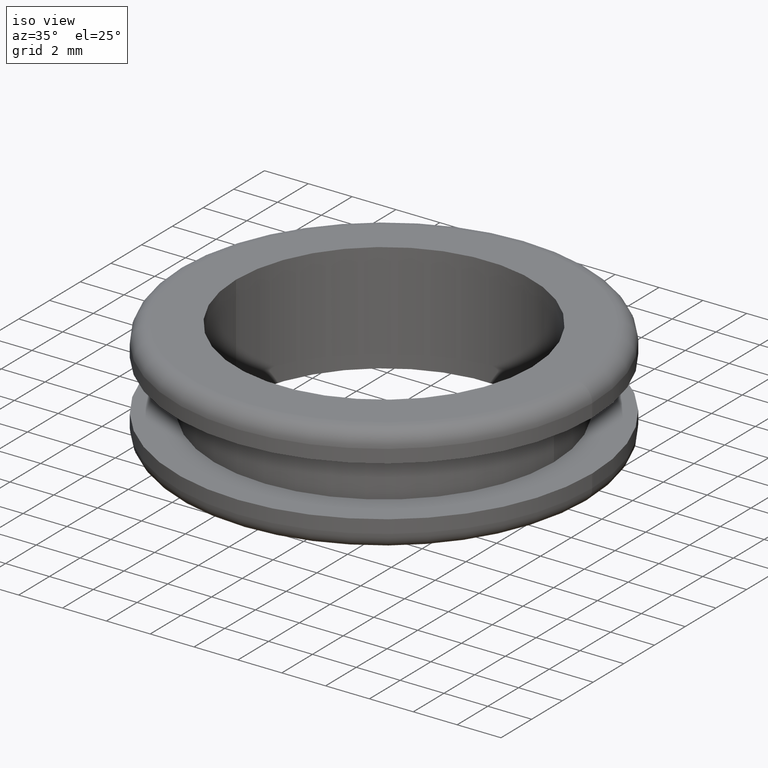
[diagram: clean part render]
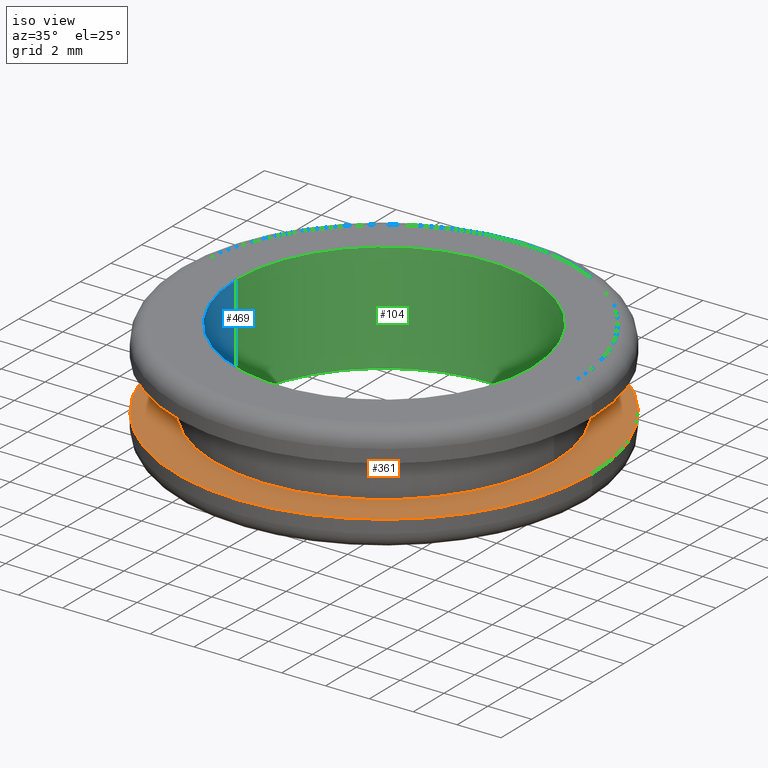
[diagram: same view with three faces highlighted in distinct colors, each labeled with its STEP entity id]
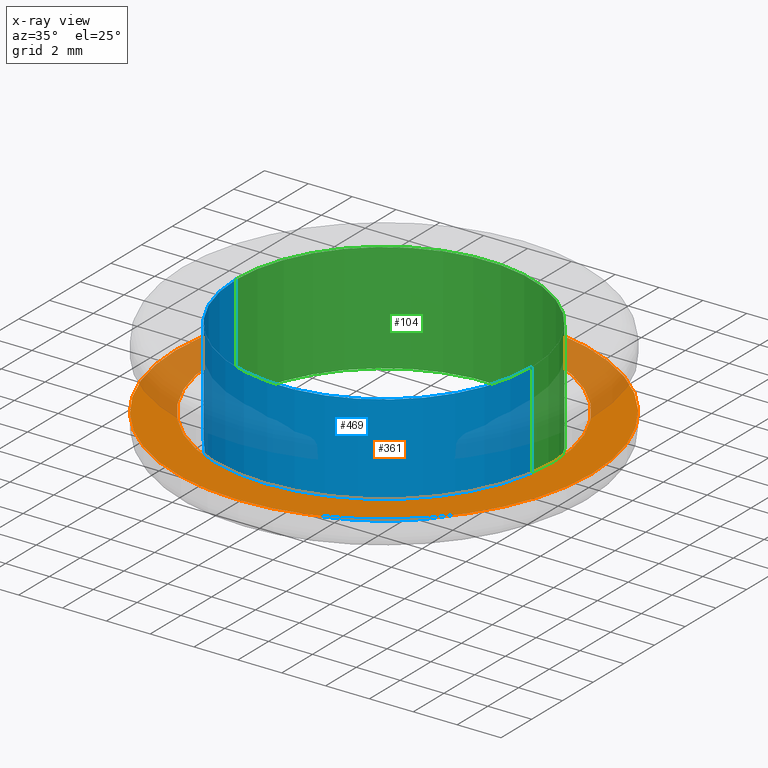
[diagram: x-ray of the same camera — body ghosted, the three highlighted faces saturated]
A machine part, iso view with three faces highlighted in distinct colors.
The next image is the same camera in x-ray (body ghosted, the three faces saturated) — at least one of them is partly hidden behind the body in this view.
Their STEP definitions:

[orange] entity #361 — the highlighted planar face has unit normal (0, 0, -1).
#8 = CARTESIAN_POINT ( 'NONE',  ( 113.8108550663362000, 0.0000000000000000000, 139.0502122310740000 ) ) ;
#31 = VERTEX_POINT ( 'NONE', #323 ) ;
#47 = CARTESIAN_POINT ( 'NONE',  ( 115.5608550661927900, 1.163414459174849600E-015, 139.0502122310740000 ) ) ;
#51 = EDGE_CURVE ( 'NONE', #391, #404, #407, .T. ) ;
#58 = EDGE_LOOP ( 'NONE', ( #357, #218 ) ) ;
#67 = DIRECTION ( 'NONE',  ( 0.0000000000000000000, 0.0000000000000000000, -1.000000000000000000 ) ) ;
#75 = AXIS2_PLACEMENT_3D ( 'NONE', #221, #472, #289 ) ;
#124 = ORIENTED_EDGE ( 'NONE', *, *, #51, .F. ) ;
#128 = AXIS2_PLACEMENT_3D ( 'NONE', #418, #196, #452 ) ;
#146 = DIRECTION ( 'NONE',  ( -1.000000000000000000, 0.0000000000000000000, 0.0000000000000000000 ) ) ;
#156 = FACE_BOUND ( 'NONE', #58, .T. ) ;
#169 = VERTEX_POINT ( 'NONE', #217 ) ;
#196 = DIRECTION ( 'NONE',  ( 0.0000000000000000000, 0.0000000000000000000, -1.000000000000000000 ) ) ;
#200 = DIRECTION ( 'NONE',  ( -1.000000000000000000, 0.0000000000000000000, 0.0000000000000000000 ) ) ;
#206 = EDGE_CURVE ( 'NONE', #31, #169, #431, .T. ) ;
#217 = CARTESIAN_POINT ( 'NONE',  ( 98.31085506629669600, 0.0000000000000000000, 139.0502122310740000 ) ) ;
#218 = ORIENTED_EDGE ( 'NONE', *, *, #206, .T. ) ;
#221 = CARTESIAN_POINT ( 'NONE',  ( 106.0608550663163900, 0.0000000000000000000, 139.0502122310740000 ) ) ;
#234 = EDGE_CURVE ( 'NONE', #169, #31, #461, .T. ) ;
#269 = CARTESIAN_POINT ( 'NONE',  ( 96.56085506643999800, 0.0000000000000000000, 139.0502122310740000 ) ) ;
#276 = EDGE_CURVE ( 'NONE', #404, #391, #305, .T. ) ;
#289 = DIRECTION ( 'NONE',  ( -1.000000000000000000, 0.0000000000000000000, 0.0000000000000000000 ) ) ;
#301 = AXIS2_PLACEMENT_3D ( 'NONE', #328, #364, #146 ) ;
#304 = PLANE ( 'NONE',  #311 ) ;
#305 = CIRCLE ( 'NONE', #128, 9.499999999876399300 ) ;
#311 = AXIS2_PLACEMENT_3D ( 'NONE', #8, #423, #200 ) ;
#323 = CARTESIAN_POINT ( 'NONE',  ( 113.8108550663360900, 9.491012693416115100E-016, 139.0502122310740000 ) ) ;
#328 = CARTESIAN_POINT ( 'NONE',  ( 106.0608550663163900, 0.0000000000000000000, 139.0502122310740000 ) ) ;
#331 = CARTESIAN_POINT ( 'NONE',  ( 106.0608550663163900, 0.0000000000000000000, 139.0502122310740000 ) ) ;
#357 = ORIENTED_EDGE ( 'NONE', *, *, #234, .T. ) ;
#361 = ADVANCED_FACE ( 'NONE', ( #422, #156 ), #304, .F. ) ;
#364 = DIRECTION ( 'NONE',  ( 0.0000000000000000000, 0.0000000000000000000, -1.000000000000000000 ) ) ;
#369 = EDGE_LOOP ( 'NONE', ( #124, #406 ) ) ;
#370 = DIRECTION ( 'NONE',  ( -1.000000000000000000, 0.0000000000000000000, 0.0000000000000000000 ) ) ;
#391 = VERTEX_POINT ( 'NONE', #269 ) ;
#404 = VERTEX_POINT ( 'NONE', #47 ) ;
#406 = ORIENTED_EDGE ( 'NONE', *, *, #276, .F. ) ;
#407 = CIRCLE ( 'NONE', #301, 9.499999999876399300 ) ;
#418 = CARTESIAN_POINT ( 'NONE',  ( 106.0608550663163900, 0.0000000000000000000, 139.0502122310740000 ) ) ;
#422 = FACE_OUTER_BOUND ( 'NONE', #369, .T. ) ;
#423 = DIRECTION ( 'NONE',  ( 0.0000000000000000000, 0.0000000000000000000, -1.000000000000000000 ) ) ;
#431 = CIRCLE ( 'NONE', #433, 7.750000000019699800 ) ;
#433 = AXIS2_PLACEMENT_3D ( 'NONE', #331, #67, #370 ) ;
#452 = DIRECTION ( 'NONE',  ( -1.000000000000000000, 0.0000000000000000000, 0.0000000000000000000 ) ) ;
#461 = CIRCLE ( 'NONE', #75, 7.750000000019699800 ) ;
#472 = DIRECTION ( 'NONE',  ( 0.0000000000000000000, 0.0000000000000000000, -1.000000000000000000 ) ) ;

[blue] entity #469 — the highlighted cylindrical surface (partial cylindrical patch) has radius 6.75 mm, axis along (0, 0, -1).
#5 = DIRECTION ( 'NONE',  ( 0.0000000000000000000, 0.0000000000000000000, -1.000000000000000000 ) ) ;
#6 = CYLINDRICAL_SURFACE ( 'NONE', #49, 6.750000000019698900 ) ;
#17 = VERTEX_POINT ( 'NONE', #446 ) ;
#25 = VECTOR ( 'NONE', #309, 1000.000000000000000 ) ;
#29 = VERTEX_POINT ( 'NONE', #438 ) ;
#43 = CARTESIAN_POINT ( 'NONE',  ( 112.8108550663360900, 8.266365894268762600E-016, 142.7002122310740000 ) ) ;
#46 = AXIS2_PLACEMENT_3D ( 'NONE', #115, #337, #76 ) ;
#49 = AXIS2_PLACEMENT_3D ( 'NONE', #244, #275, #126 ) ;
#76 = DIRECTION ( 'NONE',  ( -1.000000000000000000, 0.0000000000000000000, 0.0000000000000000000 ) ) ;
#86 = ORIENTED_EDGE ( 'NONE', *, *, #395, .T. ) ;
#87 = CARTESIAN_POINT ( 'NONE',  ( 99.31085506629669600, 0.0000000000000000000, 0.0000000000000000000 ) ) ;
#103 = EDGE_CURVE ( 'NONE', #303, #308, #420, .T. ) ;
#115 = CARTESIAN_POINT ( 'NONE',  ( 106.0608550663163900, 0.0000000000000000000, 142.7002122310740000 ) ) ;
#117 = FACE_OUTER_BOUND ( 'NONE', #220, .T. ) ;
#126 = DIRECTION ( 'NONE',  ( -1.000000000000000000, 0.0000000000000000000, 0.0000000000000000000 ) ) ;
#130 = EDGE_CURVE ( 'NONE', #303, #17, #450, .T. ) ;
#132 = ORIENTED_EDGE ( 'NONE', *, *, #103, .F. ) ;
#203 = CARTESIAN_POINT ( 'NONE',  ( 106.0608550663163900, 0.0000000000000000000, 137.7002122310740000 ) ) ;
#220 = EDGE_LOOP ( 'NONE', ( #132, #393, #86, #366 ) ) ;
#233 = LINE ( 'NONE', #87, #25 ) ;
#242 = DIRECTION ( 'NONE',  ( -1.000000000000000000, 0.0000000000000000000, 0.0000000000000000000 ) ) ;
#244 = CARTESIAN_POINT ( 'NONE',  ( 106.0608550663163900, 0.0000000000000000000, 0.0000000000000000000 ) ) ;
#275 = DIRECTION ( 'NONE',  ( 0.0000000000000000000, 0.0000000000000000000, -1.000000000000000000 ) ) ;
#302 = CARTESIAN_POINT ( 'NONE',  ( 99.31085506629669600, 0.0000000000000000000, 142.7002122310740000 ) ) ;
#303 = VERTEX_POINT ( 'NONE', #43 ) ;
#308 = VERTEX_POINT ( 'NONE', #302 ) ;
#309 = DIRECTION ( 'NONE',  ( 0.0000000000000000000, 0.0000000000000000000, -1.000000000000000000 ) ) ;
#334 = AXIS2_PLACEMENT_3D ( 'NONE', #203, #456, #242 ) ;
#337 = DIRECTION ( 'NONE',  ( 0.0000000000000000000, 0.0000000000000000000, -1.000000000000000000 ) ) ;
#353 = VECTOR ( 'NONE', #5, 1000.000000000000000 ) ;
#366 = ORIENTED_EDGE ( 'NONE', *, *, #427, .F. ) ;
#373 = CIRCLE ( 'NONE', #334, 6.750000000019698900 ) ;
#393 = ORIENTED_EDGE ( 'NONE', *, *, #130, .T. ) ;
#395 = EDGE_CURVE ( 'NONE', #17, #29, #373, .T. ) ;
#410 = CARTESIAN_POINT ( 'NONE',  ( 112.8108550663360900, 8.266365894268760700E-016, 0.0000000000000000000 ) ) ;
#420 = CIRCLE ( 'NONE', #46, 6.750000000019698900 ) ;
#427 = EDGE_CURVE ( 'NONE', #308, #29, #233, .T. ) ;
#438 = CARTESIAN_POINT ( 'NONE',  ( 99.31085506629669600, 0.0000000000000000000, 137.7002122310740000 ) ) ;
#446 = CARTESIAN_POINT ( 'NONE',  ( 112.8108550663360900, 8.266365894268762600E-016, 137.7002122310740000 ) ) ;
#450 = LINE ( 'NONE', #410, #353 ) ;
#456 = DIRECTION ( 'NONE',  ( 0.0000000000000000000, 0.0000000000000000000, -1.000000000000000000 ) ) ;
#469 = ADVANCED_FACE ( 'NONE', ( #117 ), #6, .F. ) ;

[green] entity #104 — the highlighted cylindrical surface (partial cylindrical patch) has radius 6.75 mm, axis along (0, 0, -1).
#5 = DIRECTION ( 'NONE',  ( 0.0000000000000000000, 0.0000000000000000000, -1.000000000000000000 ) ) ;
#17 = VERTEX_POINT ( 'NONE', #446 ) ;
#25 = VECTOR ( 'NONE', #309, 1000.000000000000000 ) ;
#29 = VERTEX_POINT ( 'NONE', #438 ) ;
#41 = EDGE_CURVE ( 'NONE', #308, #303, #168, .T. ) ;
#43 = CARTESIAN_POINT ( 'NONE',  ( 112.8108550663360900, 8.266365894268762600E-016, 142.7002122310740000 ) ) ;
#44 = FACE_OUTER_BOUND ( 'NONE', #347, .T. ) ;
#87 = CARTESIAN_POINT ( 'NONE',  ( 99.31085506629669600, 0.0000000000000000000, 0.0000000000000000000 ) ) ;
#89 = DIRECTION ( 'NONE',  ( 0.0000000000000000000, 0.0000000000000000000, -1.000000000000000000 ) ) ;
#104 = ADVANCED_FACE ( 'NONE', ( #44 ), #274, .F. ) ;
#107 = DIRECTION ( 'NONE',  ( 0.0000000000000000000, 0.0000000000000000000, -1.000000000000000000 ) ) ;
#112 = CARTESIAN_POINT ( 'NONE',  ( 106.0608550663163900, 0.0000000000000000000, 142.7002122310740000 ) ) ;
#122 = ORIENTED_EDGE ( 'NONE', *, *, #130, .F. ) ;
#123 = AXIS2_PLACEMENT_3D ( 'NONE', #377, #194, #451 ) ;
#130 = EDGE_CURVE ( 'NONE', #303, #17, #450, .T. ) ;
#168 = CIRCLE ( 'NONE', #249, 6.750000000019698900 ) ;
#186 = ORIENTED_EDGE ( 'NONE', *, *, #41, .F. ) ;
#194 = DIRECTION ( 'NONE',  ( 0.0000000000000000000, 0.0000000000000000000, -1.000000000000000000 ) ) ;
#202 = ORIENTED_EDGE ( 'NONE', *, *, #449, .T. ) ;
#233 = LINE ( 'NONE', #87, #25 ) ;
#249 = AXIS2_PLACEMENT_3D ( 'NONE', #112, #107, #371 ) ;
#274 = CYLINDRICAL_SURFACE ( 'NONE', #123, 6.750000000019698900 ) ;
#283 = ORIENTED_EDGE ( 'NONE', *, *, #427, .T. ) ;
#302 = CARTESIAN_POINT ( 'NONE',  ( 99.31085506629669600, 0.0000000000000000000, 142.7002122310740000 ) ) ;
#303 = VERTEX_POINT ( 'NONE', #43 ) ;
#308 = VERTEX_POINT ( 'NONE', #302 ) ;
#309 = DIRECTION ( 'NONE',  ( 0.0000000000000000000, 0.0000000000000000000, -1.000000000000000000 ) ) ;
#310 = CARTESIAN_POINT ( 'NONE',  ( 106.0608550663163900, 0.0000000000000000000, 137.7002122310740000 ) ) ;
#314 = CIRCLE ( 'NONE', #358, 6.750000000019698900 ) ;
#347 = EDGE_LOOP ( 'NONE', ( #122, #186, #283, #202 ) ) ;
#350 = DIRECTION ( 'NONE',  ( -1.000000000000000000, 0.0000000000000000000, 0.0000000000000000000 ) ) ;
#353 = VECTOR ( 'NONE', #5, 1000.000000000000000 ) ;
#358 = AXIS2_PLACEMENT_3D ( 'NONE', #310, #89, #350 ) ;
#371 = DIRECTION ( 'NONE',  ( -1.000000000000000000, 0.0000000000000000000, 0.0000000000000000000 ) ) ;
#377 = CARTESIAN_POINT ( 'NONE',  ( 106.0608550663163900, 0.0000000000000000000, 0.0000000000000000000 ) ) ;
#410 = CARTESIAN_POINT ( 'NONE',  ( 112.8108550663360900, 8.266365894268760700E-016, 0.0000000000000000000 ) ) ;
#427 = EDGE_CURVE ( 'NONE', #308, #29, #233, .T. ) ;
#438 = CARTESIAN_POINT ( 'NONE',  ( 99.31085506629669600, 0.0000000000000000000, 137.7002122310740000 ) ) ;
#446 = CARTESIAN_POINT ( 'NONE',  ( 112.8108550663360900, 8.266365894268762600E-016, 137.7002122310740000 ) ) ;
#449 = EDGE_CURVE ( 'NONE', #29, #17, #314, .T. ) ;
#450 = LINE ( 'NONE', #410, #353 ) ;
#451 = DIRECTION ( 'NONE',  ( -1.000000000000000000, 0.0000000000000000000, 0.0000000000000000000 ) ) ;